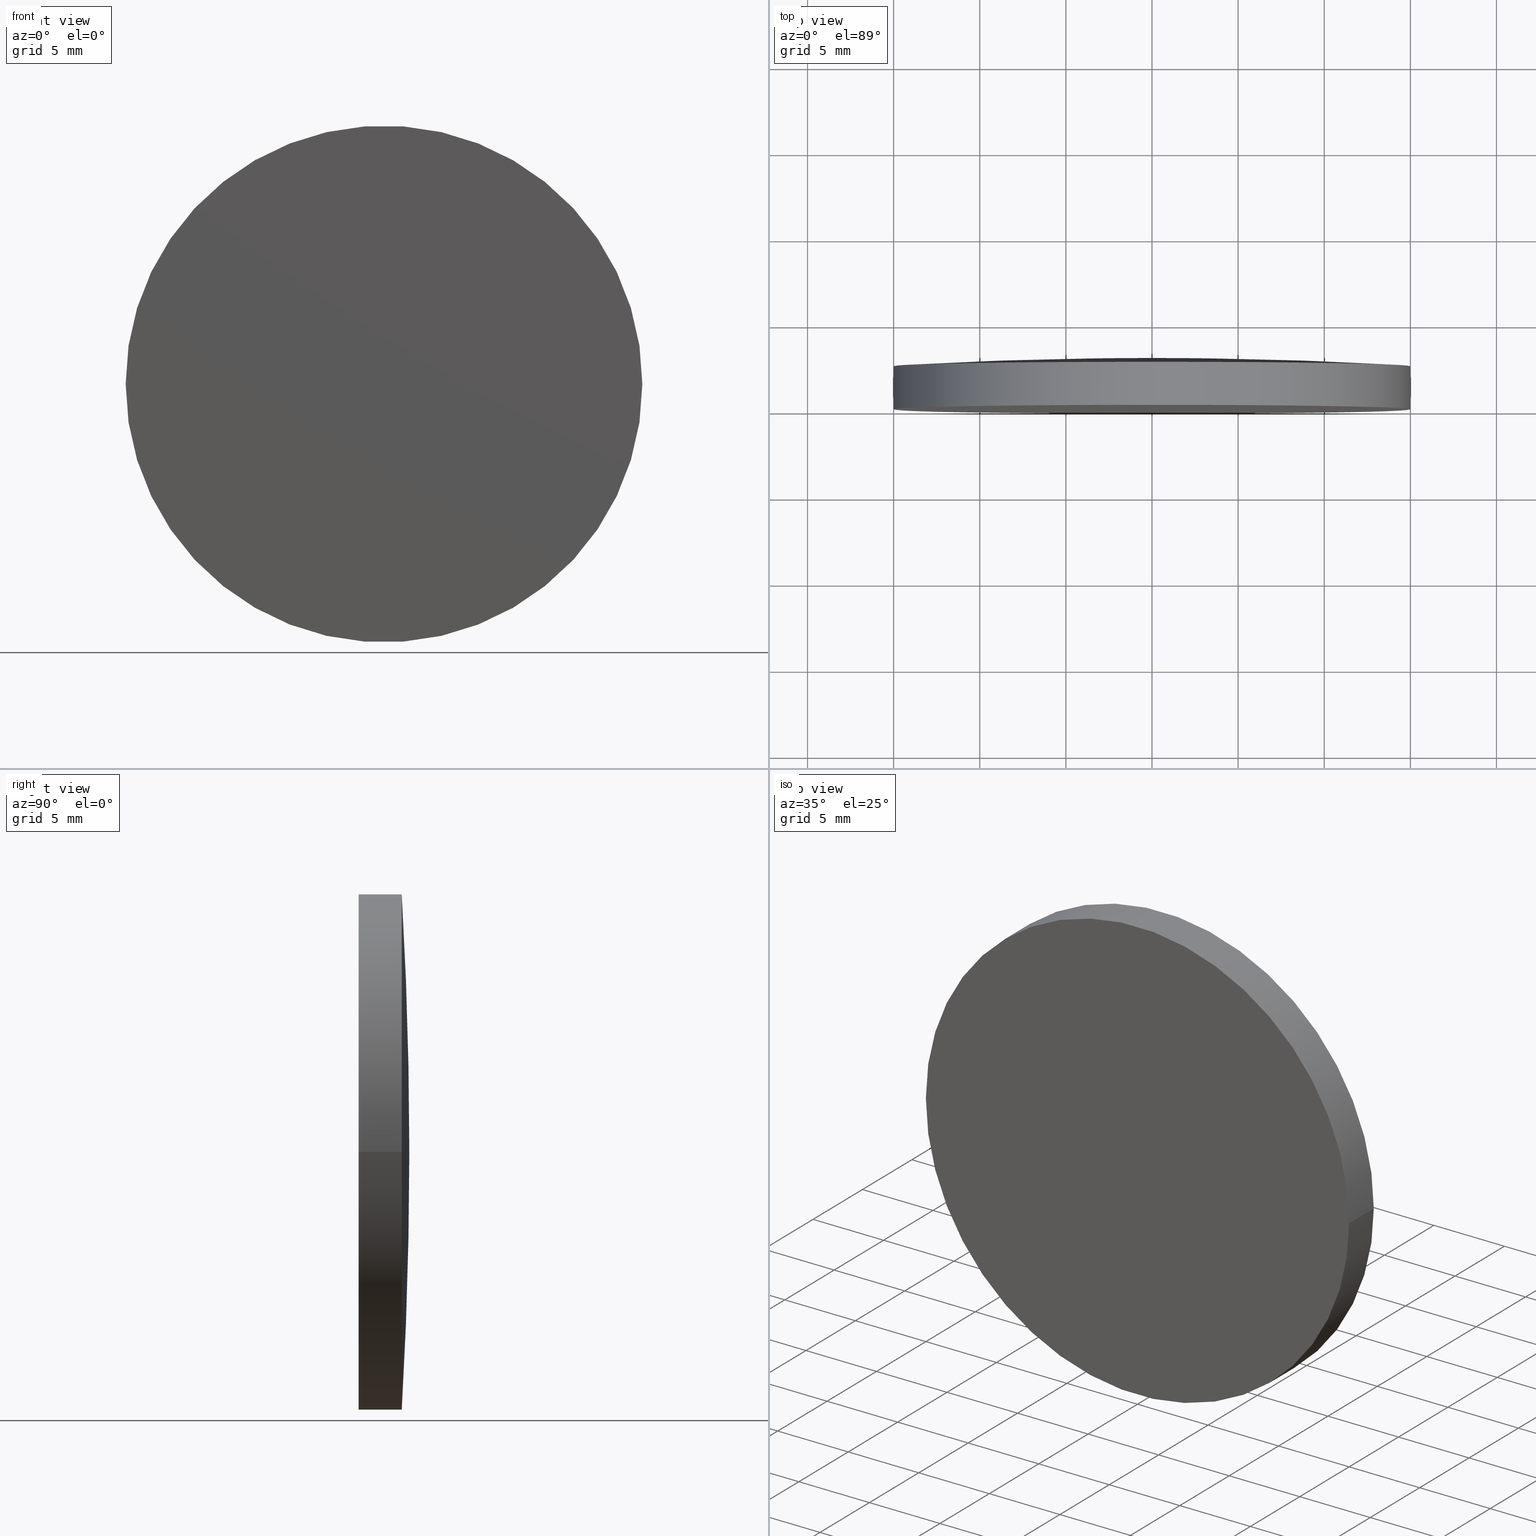
[diagram: canonical four-view strip — front | top / right | iso, engineering-drawing reading convention]
A machine part, canonical four-view strip (front | top / right | iso — engineering-drawing reading convention). The complete STEP part file that produces these views, byte-faithful:
ISO-10303-21;
HEADER;
FILE_DESCRIPTION (( 'STEP AP203' ),
    '1' );
FILE_NAME ('100557.STEP',
    '2024-05-09T01:52:55',
    ( '' ),
    ( '' ),
    'SwSTEP 2.0',
    'SolidWorks 2020',
    '' );
FILE_SCHEMA (( 'CONFIG_CONTROL_DESIGN' ));
ENDSEC;

DATA;
#1 = ORIENTED_EDGE ( 'NONE', *, *, #115, .F. ) ;
#2 = ORIENTED_EDGE ( 'NONE', *, *, #24, .F. ) ;
#3 = APPROVAL_STATUS ( 'not_yet_approved' ) ;
#4 = SECURITY_CLASSIFICATION ( '', '', #148 ) ;
#5 = CARTESIAN_POINT ( 'NONE',  ( 5.265981236333619456E-17, 2.939999999999999947, 0.000000000000000000 ) ) ;
#6 = COORDINATED_UNIVERSAL_TIME_OFFSET ( 8, 0, .AHEAD. ) ;
#7 = COORDINATED_UNIVERSAL_TIME_OFFSET ( 8, 0, .AHEAD. ) ;
#8 = CALENDAR_DATE ( 2024, 9, 5 ) ;
#9 = EDGE_CURVE ( 'NONE', #72, #27, #133, .T. ) ;
#10 = DIRECTION ( 'NONE',  ( -0.000000000000000000, 0.000000000000000000, -1.000000000000000000 ) ) ;
#11 = PLANE ( 'NONE',  #125 ) ;
#12 = CARTESIAN_POINT ( 'NONE',  ( 5.265981236333619456E-17, 2.939999999999999947, 0.000000000000000000 ) ) ;
#13 = ORIENTED_EDGE ( 'NONE', *, *, #56, .F. ) ;
#14 = DIRECTION ( 'NONE',  ( 1.791150080385584967E-17, 1.000000000000000000, -0.000000000000000000 ) ) ;
#15 = CLOSED_SHELL ( 'NONE', ( #43, #178, #73, #35, #168 ) ) ;
#16 = EDGE_CURVE ( 'NONE', #72, #172, #108, .T. ) ;
#17 = CARTESIAN_POINT ( 'NONE',  ( -4.567201651595187428E-15, -255.2399913514417733, 0.000000000000000000 ) ) ;
#18 =( LENGTH_UNIT ( ) NAMED_UNIT ( * ) SI_UNIT ( .MILLI., .METRE. ) );
#19 = DIRECTION ( 'NONE',  ( -1.224646799147353207E-16, 2.193526212736731115E-33, 1.000000000000000000 ) ) ;
#20 = CIRCLE ( 'NONE', #120, 258.1800000000000068 ) ;
#21 = PERSON_AND_ORGANIZATION_ROLE ( 'classification_officer' ) ;
#22 = DATE_AND_TIME ( #163, #37 ) ;
#23 = DATE_AND_TIME ( #97, #87 ) ;
#24 = EDGE_CURVE ( 'NONE', #152, #117, #91, .T. ) ;
#25 = APPROVAL_PERSON_ORGANIZATION ( #98, #185, #198 ) ;
#26 = CARTESIAN_POINT ( 'NONE',  ( 5.265981236333619456E-17, 2.939999999999999947, 0.000000000000000000 ) ) ;
#27 = VERTEX_POINT ( 'NONE', #26 ) ;
#28 = ORIENTED_EDGE ( 'NONE', *, *, #16, .T. ) ;
#29 = CYLINDRICAL_SURFACE ( 'NONE', #190, 15.00000000000000000 ) ;
#30 = CARTESIAN_POINT ( 'NONE',  ( 14.99999999999983302, 2.500000000000027534, 1.836970198721009079E-15 ) ) ;
#31 = AXIS2_PLACEMENT_3D ( 'NONE', #94, #90, #157 ) ;
#32 = CC_DESIGN_PERSON_AND_ORGANIZATION_ASSIGNMENT ( #162, #21, ( #4 ) ) ;
#33 = PERSON_AND_ORGANIZATION ( #47, #171 ) ;
#34 = COORDINATED_UNIVERSAL_TIME_OFFSET ( 8, 0, .AHEAD. ) ;
#35 = ADVANCED_FACE ( 'NONE', ( #86 ), #11, .T. ) ;
#36 = DATE_AND_TIME ( #184, #53 ) ;
#37 = LOCAL_TIME ( 9, 52, 55.00000000000000000, #7 ) ;
#38 = ORIENTED_EDGE ( 'NONE', *, *, #188, .T. ) ;
#39 = MANIFOLD_SOLID_BREP ( '��ת2', #15 ) ;
#40 = DIRECTION ( 'NONE',  ( 1.791150080385584967E-17, 1.000000000000000000, -0.000000000000000000 ) ) ;
#41 = AXIS2_PLACEMENT_3D ( 'NONE', #58, #10, #121 ) ;
#42 = ORIENTED_EDGE ( 'NONE', *, *, #154, .F. ) ;
#43 = ADVANCED_FACE ( 'NONE', ( #102 ), #155, .T. ) ;
#44 = DIRECTION ( 'NONE',  ( -1.000000000000000000, 1.791150080385585583E-17, 0.000000000000000000 ) ) ;
#45 = APPROVAL ( #149, 'δָ��' ) ;
#46 = CARTESIAN_POINT ( 'NONE',  ( 15.00000000000000000, 2.939999999999999503, 1.836970198721029589E-15 ) ) ;
#47 = PERSON ( 'δָ��', 'δָ��', 'δָ��', ('δָ��'), ('δָ��'), ('δָ��') ) ;
#48 = FACE_OUTER_BOUND ( 'NONE', #104, .T. ) ;
#49 = MECHANICAL_CONTEXT ( 'NONE', #52, 'mechanical' ) ;
#50 = DATE_AND_TIME ( #113, #116 ) ;
#51 = APPROVAL_DATE_TIME ( #23, #158 ) ;
#52 = APPLICATION_CONTEXT ( 'configuration controlled 3d designs of mechanical parts and assemblies' ) ;
#53 = LOCAL_TIME ( 9, 52, 55.00000000000000000, #199 ) ;
#54 = CIRCLE ( 'NONE', #62, 15.00000000000000000 ) ;
#55 = ORIENTED_EDGE ( 'NONE', *, *, #154, .T. ) ;
#56 = EDGE_CURVE ( 'NONE', #152, #72, #77, .T. ) ;
#57 = AXIS2_PLACEMENT_3D ( 'NONE', #12, #74, #192 ) ;
#58 = CARTESIAN_POINT ( 'NONE',  ( 0.06682641297565267147, -255.2399913514417733, 0.000000000000000000 ) ) ;
#59 = PRODUCT_RELATED_PRODUCT_CATEGORY ( 'detail', '', ( #174 ) ) ;
#60 = ORIENTED_EDGE ( 'NONE', *, *, #188, .F. ) ;
#61 = PRODUCT_DEFINITION_SHAPE ( 'NONE', 'NONE',  #151 ) ;
#62 = AXIS2_PLACEMENT_3D ( 'NONE', #64, #14, #107 ) ;
#63 = DIRECTION ( 'NONE',  ( 1.791150080385584967E-17, 1.000000000000000000, -0.000000000000000000 ) ) ;
#64 = CARTESIAN_POINT ( 'NONE',  ( 4.477875200963958719E-17, 2.499999999999997780, 0.000000000000000000 ) ) ;
#65 = CARTESIAN_POINT ( 'NONE',  ( -15.00000000000000000, -1.899731832913170901E-15, 0.000000000000000000 ) ) ;
#66 = DIRECTION ( 'NONE',  ( -1.000000000000000000, 1.791150080385584967E-17, 0.000000000000000000 ) ) ;
#67 = COORDINATED_UNIVERSAL_TIME_OFFSET ( 8, 0, .AHEAD. ) ;
#68 = PERSON_AND_ORGANIZATION ( #47, #171 ) ;
#69 = AXIS2_PLACEMENT_3D ( 'NONE', #187, #40, #99 ) ;
#70 = CIRCLE ( 'NONE', #182, 15.00000000000000000 ) ;
#71 = CC_DESIGN_PERSON_AND_ORGANIZATION_ASSIGNMENT ( #164, #150, ( #151 ) ) ;
#72 = VERTEX_POINT ( 'NONE', #179 ) ;
#73 = ADVANCED_FACE ( 'NONE', ( #126 ), #159, .T. ) ;
#74 = DIRECTION ( 'NONE',  ( 1.791150080385584967E-17, 1.000000000000000000, -0.000000000000000000 ) ) ;
#75 = CARTESIAN_POINT ( 'NONE',  ( -15.00000000000000000, 2.940000000000000391, 0.000000000000000000 ) ) ;
#76 = DIRECTION ( 'NONE',  ( 1.791150080385584967E-17, 1.000000000000000000, -0.000000000000000000 ) ) ;
#77 = LINE ( 'NONE', #75, #167 ) ;
#78 =( NAMED_UNIT ( * ) PLANE_ANGLE_UNIT ( ) SI_UNIT ( $, .RADIAN. ) );
#79 = AXIS2_PLACEMENT_3D ( 'NONE', #17, #156, #66 ) ;
#80 = APPROVAL_DATE_TIME ( #181, #185 ) ;
#81 = PERSON_AND_ORGANIZATION ( #47, #171 ) ;
#82 = CC_DESIGN_DATE_AND_TIME_ASSIGNMENT ( #22, #114, ( #151 ) ) ;
#83 = APPROVAL_STATUS ( 'not_yet_approved' ) ;
#84 = ORIENTED_EDGE ( 'NONE', *, *, #9, .F. ) ;
#85 = EDGE_LOOP ( 'NONE', ( #189, #173, #124, #13 ) ) ;
#86 = FACE_OUTER_BOUND ( 'NONE', #122, .T. ) ;
#87 = LOCAL_TIME ( 9, 52, 55.00000000000000000, #34 ) ;
#88 = DIRECTION ( 'NONE',  ( 1.000000000000000000, -1.791150080385584967E-17, 0.000000000000000000 ) ) ;
#89 = CARTESIAN_POINT ( 'NONE',  ( -4.567201651595187428E-15, -255.2399913514417733, 0.000000000000000000 ) ) ;
#90 = DIRECTION ( 'NONE',  ( 0.000000000000000000, 0.000000000000000000, 1.000000000000000000 ) ) ;
#91 = CIRCLE ( 'NONE', #96, 15.00000000000000000 ) ;
#92 = DIRECTION ( 'NONE',  ( -1.000000000000000000, 1.791150080385585583E-17, 0.000000000000000000 ) ) ;
#93 = EDGE_CURVE ( 'NONE', #172, #72, #54, .T. ) ;
#94 = CARTESIAN_POINT ( 'NONE',  ( 0.000000000000000000, 0.000000000000000000, 0.000000000000000000 ) ) ;
#95 = PERSON_AND_ORGANIZATION_ROLE ( 'design_supplier' ) ;
#96 = AXIS2_PLACEMENT_3D ( 'NONE', #191, #166, #44 ) ;
#97 = CALENDAR_DATE ( 2024, 9, 5 ) ;
#98 = PERSON_AND_ORGANIZATION ( #47, #171 ) ;
#99 = DIRECTION ( 'NONE',  ( -1.000000000000000000, 2.891205793294678696E-17, 0.000000000000000000 ) ) ;
#100 = UNCERTAINTY_MEASURE_WITH_UNIT (LENGTH_MEASURE( 1.000000000000000082E-05 ), #18, 'distance_accuracy_value', 'NONE');
#101 = CC_DESIGN_PERSON_AND_ORGANIZATION_ASSIGNMENT ( #68, #95, ( #132 ) ) ;
#102 = FACE_OUTER_BOUND ( 'NONE', #85, .T. ) ;
#103 = CC_DESIGN_SECURITY_CLASSIFICATION ( #4, ( #132 ) ) ;
#104 = EDGE_LOOP ( 'NONE', ( #28, #38, #84 ) ) ;
#105 = DIRECTION ( 'NONE',  ( 1.791150080385584967E-17, 1.000000000000000000, -0.000000000000000000 ) ) ;
#106 = CC_DESIGN_PERSON_AND_ORGANIZATION_ASSIGNMENT ( #194, #129, ( #174 ) ) ;
#107 = DIRECTION ( 'NONE',  ( -1.000000000000000000, 2.891205793294678696E-17, 0.000000000000000000 ) ) ;
#108 = CIRCLE ( 'NONE', #69, 15.00000000000000000 ) ;
#109 = APPROVAL_ROLE ( '' ) ;
#110 = CARTESIAN_POINT ( 'NONE',  ( -0.06682641297566180305, -255.2399913514417733, -8.183875274913779091E-18 ) ) ;
#111 = CARTESIAN_POINT ( 'NONE',  ( -4.212971753347078429E-32, -2.168404344971008868E-15, 0.000000000000000000 ) ) ;
#112 = CC_DESIGN_APPROVAL ( #158, ( #151 ) ) ;
#113 = CALENDAR_DATE ( 2024, 9, 5 ) ;
#114 = DATE_TIME_ROLE ( 'creation_date' ) ;
#115 = EDGE_CURVE ( 'NONE', #117, #172, #145, .T. ) ;
#116 = LOCAL_TIME ( 9, 52, 55.00000000000000000, #6 ) ;
#117 = VERTEX_POINT ( 'NONE', #177 ) ;
#118 = AXIS2_PLACEMENT_3D ( 'NONE', #89, #63, #128 ) ;
#119 = ORIENTED_EDGE ( 'NONE', *, *, #93, .T. ) ;
#120 = AXIS2_PLACEMENT_3D ( 'NONE', #110, #19, #195 ) ;
#121 = DIRECTION ( 'NONE',  ( -1.000000000000000000, 0.000000000000000000, 0.000000000000000000 ) ) ;
#122 = EDGE_LOOP ( 'NONE', ( #2, #42 ) ) ;
#123 = CC_DESIGN_DATE_AND_TIME_ASSIGNMENT ( #50, #183, ( #4 ) ) ;
#124 = ORIENTED_EDGE ( 'NONE', *, *, #16, .F. ) ;
#125 = AXIS2_PLACEMENT_3D ( 'NONE', #201, #169, #88 ) ;
#126 = FACE_OUTER_BOUND ( 'NONE', #170, .T. ) ;
#127 = DIRECTION ( 'NONE',  ( 1.791150080385584967E-17, 1.000000000000000000, -0.000000000000000000 ) ) ;
#128 = DIRECTION ( 'NONE',  ( -1.000000000000000000, 1.791150080385584967E-17, 0.000000000000000000 ) ) ;
#129 = PERSON_AND_ORGANIZATION_ROLE ( 'design_owner' ) ;
#130 =( NAMED_UNIT ( * ) SI_UNIT ( $, .STERADIAN. ) SOLID_ANGLE_UNIT ( ) );
#131 = PERSON_AND_ORGANIZATION_ROLE ( 'creator' ) ;
#132 = PRODUCT_DEFINITION_FORMATION_WITH_SPECIFIED_SOURCE ( '�κ�', '', #174, .NOT_KNOWN. ) ;
#133 = CIRCLE ( 'NONE', #41, 258.1800000000000068 ) ;
#134 = SHAPE_DEFINITION_REPRESENTATION ( #61, #160 ) ;
#135 = APPROVAL_ROLE ( '' ) ;
#136 =( GEOMETRIC_REPRESENTATION_CONTEXT ( 3 ) GLOBAL_UNCERTAINTY_ASSIGNED_CONTEXT ( ( #100 ) ) GLOBAL_UNIT_ASSIGNED_CONTEXT ( ( #18, #78, #130 ) ) REPRESENTATION_CONTEXT ( 'NONE', 'WORKASPACE' ) );
#137 = ORIENTED_EDGE ( 'NONE', *, *, #93, .F. ) ;
#138 = ORIENTED_EDGE ( 'NONE', *, *, #9, .T. ) ;
#139 = APPLICATION_CONTEXT ( 'configuration controlled 3d designs of mechanical parts and assemblies' ) ;
#140 = LOCAL_TIME ( 9, 52, 55.00000000000000000, #67 ) ;
#141 = TOROIDAL_SURFACE ( 'NONE', #79, -0.06682641297565723726, 258.1800000000000068 ) ;
#142 = PERSON_AND_ORGANIZATION ( #47, #171 ) ;
#143 = CC_DESIGN_PERSON_AND_ORGANIZATION_ASSIGNMENT ( #33, #131, ( #132 ) ) ;
#144 = APPROVAL_PERSON_ORGANIZATION ( #81, #45, #135 ) ;
#145 = LINE ( 'NONE', #46, #146 ) ;
#146 = VECTOR ( 'NONE', #76, 1000.000000000000000 ) ;
#147 = DIRECTION ( 'NONE',  ( 1.791150080385584967E-17, 1.000000000000000000, -0.000000000000000000 ) ) ;
#148 = SECURITY_CLASSIFICATION_LEVEL ( 'unclassified' ) ;
#149 = APPROVAL_STATUS ( 'not_yet_approved' ) ;
#150 = PERSON_AND_ORGANIZATION_ROLE ( 'creator' ) ;
#151 = PRODUCT_DEFINITION ( 'δ֪', '', #132, #186 ) ;
#152 = VERTEX_POINT ( 'NONE', #65 ) ;
#153 = CC_DESIGN_APPROVAL ( #185, ( #132 ) ) ;
#154 = EDGE_CURVE ( 'NONE', #117, #152, #70, .T. ) ;
#155 = CYLINDRICAL_SURFACE ( 'NONE', #57, 15.00000000000000000 ) ;
#156 = DIRECTION ( 'NONE',  ( 1.791150080385584967E-17, 1.000000000000000000, -0.000000000000000000 ) ) ;
#157 = DIRECTION ( 'NONE',  ( 1.000000000000000000, 0.000000000000000000, 0.000000000000000000 ) ) ;
#158 = APPROVAL ( #3, 'δָ��' ) ;
#159 = TOROIDAL_SURFACE ( 'NONE', #118, -0.06682641297565723726, 258.1800000000000068 ) ;
#160 = ADVANCED_BREP_SHAPE_REPRESENTATION ( '100557', ( #39, #31 ), #136 ) ;
#161 = FACE_OUTER_BOUND ( 'NONE', #193, .T. ) ;
#162 = PERSON_AND_ORGANIZATION ( #47, #171 ) ;
#163 = CALENDAR_DATE ( 2024, 9, 5 ) ;
#164 = PERSON_AND_ORGANIZATION ( #47, #171 ) ;
#165 = ORIENTED_EDGE ( 'NONE', *, *, #56, .T. ) ;
#166 = DIRECTION ( 'NONE',  ( 1.791150080385584967E-17, 1.000000000000000000, -0.000000000000000000 ) ) ;
#167 = VECTOR ( 'NONE', #147, 1000.000000000000000 ) ;
#168 = ADVANCED_FACE ( 'NONE', ( #161 ), #29, .T. ) ;
#169 = DIRECTION ( 'NONE',  ( -1.791150080385584967E-17, -1.000000000000000000, 0.000000000000000000 ) ) ;
#170 = EDGE_LOOP ( 'NONE', ( #60, #119, #138 ) ) ;
#171 = ORGANIZATION ( 'δָ��', 'δָ��', '' ) ;
#172 = VERTEX_POINT ( 'NONE', #30 ) ;
#173 = ORIENTED_EDGE ( 'NONE', *, *, #115, .T. ) ;
#174 = PRODUCT ( '100557', '100557', '', ( #49 ) ) ;
#175 = DIRECTION ( 'NONE',  ( -1.000000000000000000, 2.891205793294678696E-17, 0.000000000000000000 ) ) ;
#176 = APPLICATION_PROTOCOL_DEFINITION ( 'international standard', 'config_control_design', 1994, #52 ) ;
#177 = CARTESIAN_POINT ( 'NONE',  ( 15.00000000000000000, -2.437076857028846835E-15, 1.836970198721029589E-15 ) ) ;
#178 = ADVANCED_FACE ( 'NONE', ( #48 ), #141, .T. ) ;
#179 = CARTESIAN_POINT ( 'NONE',  ( -14.99999999999983125, 2.500000000000028422, 0.000000000000000000 ) ) ;
#180 = APPROVAL_DATE_TIME ( #36, #45 ) ;
#181 = DATE_AND_TIME ( #8, #140 ) ;
#182 = AXIS2_PLACEMENT_3D ( 'NONE', #111, #127, #92 ) ;
#183 = DATE_TIME_ROLE ( 'classification_date' ) ;
#184 = CALENDAR_DATE ( 2024, 9, 5 ) ;
#185 = APPROVAL ( #83, 'δָ��' ) ;
#186 = DESIGN_CONTEXT ( 'detailed design', #139, 'design' ) ;
#187 = CARTESIAN_POINT ( 'NONE',  ( 4.477875200963958719E-17, 2.499999999999997780, 0.000000000000000000 ) ) ;
#188 = EDGE_CURVE ( 'NONE', #172, #27, #20, .T. ) ;
#189 = ORIENTED_EDGE ( 'NONE', *, *, #24, .T. ) ;
#190 = AXIS2_PLACEMENT_3D ( 'NONE', #5, #105, #175 ) ;
#191 = CARTESIAN_POINT ( 'NONE',  ( -4.212971753347078429E-32, -2.168404344971008868E-15, 0.000000000000000000 ) ) ;
#192 = DIRECTION ( 'NONE',  ( -1.000000000000000000, 2.891205793294678696E-17, 0.000000000000000000 ) ) ;
#193 = EDGE_LOOP ( 'NONE', ( #1, #55, #165, #137 ) ) ;
#194 = PERSON_AND_ORGANIZATION ( #47, #171 ) ;
#195 = DIRECTION ( 'NONE',  ( 1.000000000000000000, 0.000000000000000000, 1.224646799147353207E-16 ) ) ;
#196 = APPLICATION_PROTOCOL_DEFINITION ( 'international standard', 'config_control_design', 1994, #139 ) ;
#197 = APPROVAL_PERSON_ORGANIZATION ( #142, #158, #109 ) ;
#198 = APPROVAL_ROLE ( '' ) ;
#199 = COORDINATED_UNIVERSAL_TIME_OFFSET ( 8, 0, .AHEAD. ) ;
#200 = CC_DESIGN_APPROVAL ( #45, ( #4 ) ) ;
#201 = CARTESIAN_POINT ( 'NONE',  ( -1.885761055337444664E-32, -1.052821355389433778E-15, 0.000000000000000000 ) ) ;
ENDSEC;
END-ISO-10303-21;
